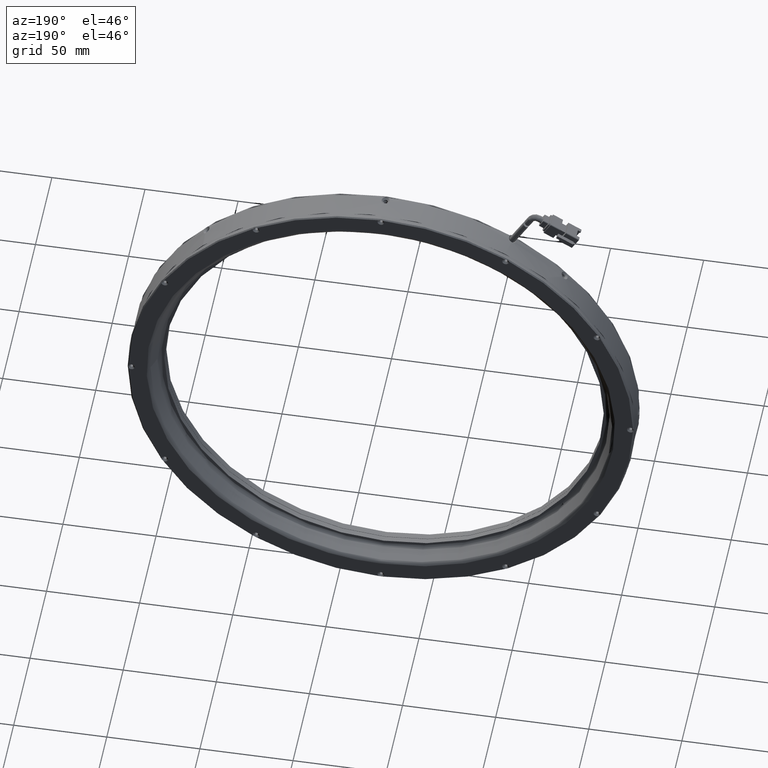
[diagram: clean part render]
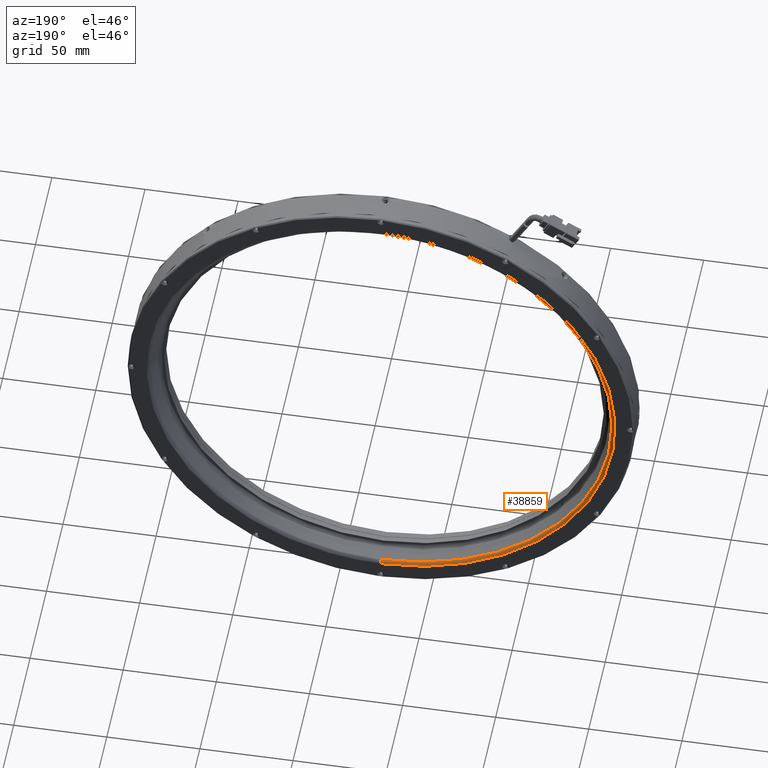
[diagram: same view with one face highlighted and labeled with its STEP entity id]
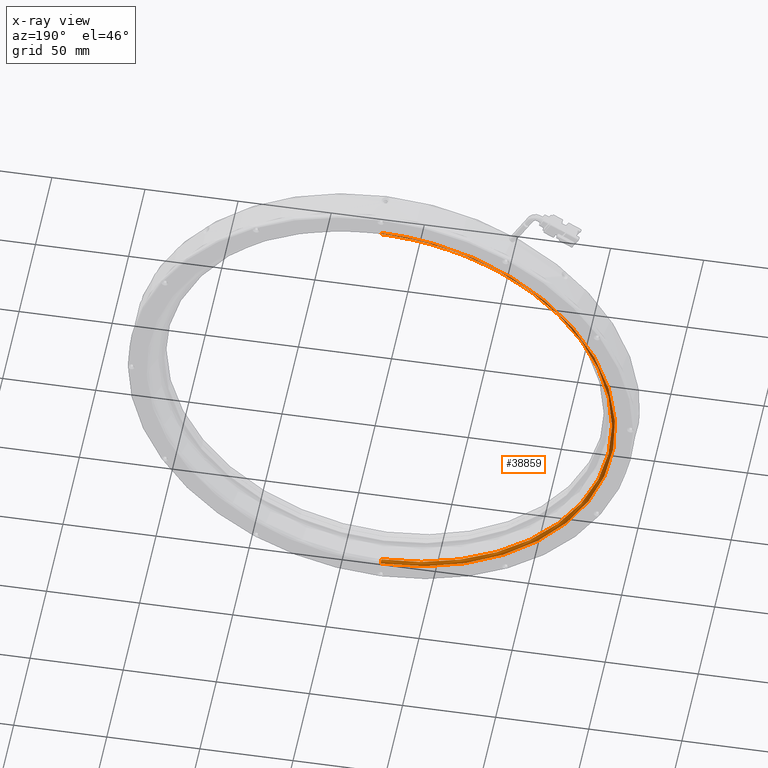
[diagram: x-ray of the same camera — body ghosted, the highlighted face saturated]
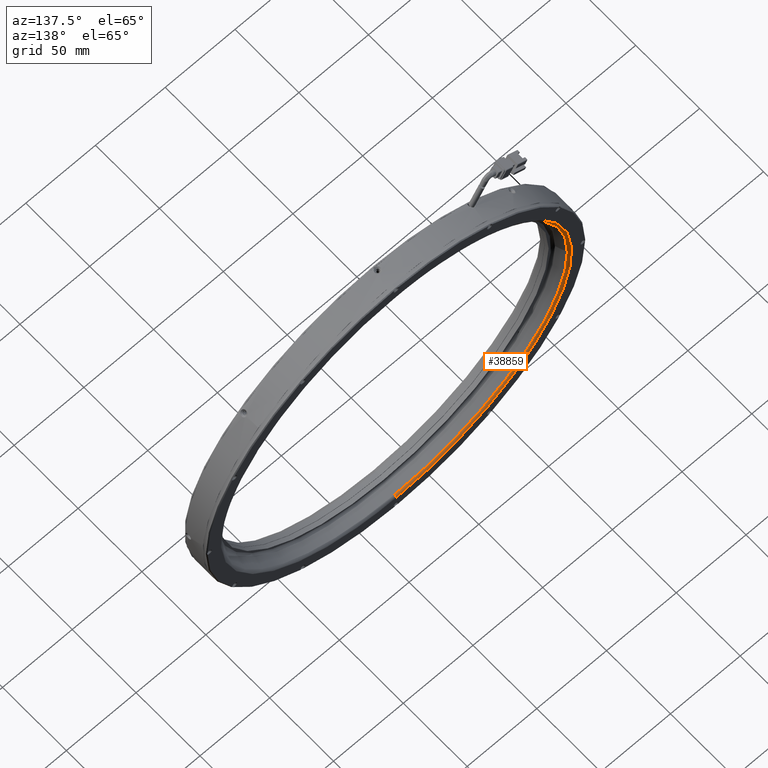
[diagram: same view with one face highlighted and labeled with its STEP entity id]
A machine part, auxiliary view. The second image highlights one B-rep face of the part: STEP entity #38859.
The next image is the same camera in x-ray: the body ghosted, the highlighted face saturated — about 0% of this face is hidden behind the body in this view.
A second angle (auxiliary view) of the same face is appended — the face is thin or edge-on in the first view.
In plain terms, the highlighted face is a freeform B-spline surface patch.
Its self-contained STEP definition (entity closure, byte-faithful):
#1815 = ORIENTED_EDGE ( 'NONE', *, *, #45398, .T. ) ;
#1917 = DIRECTION ( 'NONE',  ( 1.000000000000000000, 0.0000000000000000000, 0.0000000000000000000 ) ) ;
#3685 = CARTESIAN_POINT ( 'NONE',  ( -23.30300868215380200, 13.25624818171085700, 123.9268870712438700 ) ) ;
#3763 =( BOUNDED_CURVE ( )  B_SPLINE_CURVE ( 3, ( #86493, #3802, #96914, #34889 ),
 .UNSPECIFIED., .F., .F. ) 
 B_SPLINE_CURVE_WITH_KNOTS ( ( 4, 4 ),
 ( 0.0000000000000000000, 1.000000000000000000 ),
 .UNSPECIFIED. ) 
 CURVE ( )  GEOMETRIC_REPRESENTATION_ITEM ( )  RATIONAL_B_SPLINE_CURVE ( ( 1.000000000000000000, 0.3333333333333333700, 0.3333333333333333700, 1.000000000000000000 ) ) 
 REPRESENTATION_ITEM ( '' )  );
#3802 = CARTESIAN_POINT ( 'NONE',  ( -274.9155533077851600, 14.57220789505952600, -125.8062723128157400 ) ) ;
#4052 = AXIS2_PLACEMENT_3D ( 'NONE', #88054, #26028, #98469 ) ;
#7574 = VERTEX_POINT ( 'NONE', #13245 ) ;
#8029 = CARTESIAN_POINT ( 'NONE',  ( -23.30300868215380200, 14.57220789505952400, 125.8062723128156900 ) ) ;
#8453 = CARTESIAN_POINT ( 'NONE',  ( -271.1567828246415400, 13.25624818171085600, 123.9268870712439100 ) ) ;
#11302 = DIRECTION ( 'NONE',  ( -0.0000000000000000000, -1.000000000000000000, -0.0000000000000000000 ) ) ;
#12908 = FACE_OUTER_BOUND ( 'NONE', #57443, .T. ) ;
#13245 = CARTESIAN_POINT ( 'NONE',  ( -23.30300868215381600, 14.57220789505952000, -125.8062723128157400 ) ) ;
#18383 = CARTESIAN_POINT ( 'NONE',  ( -274.9155533077852200, 14.57220789505952200, -125.8062723128156900 ) ) ;
#18833 = CARTESIAN_POINT ( 'NONE',  ( -23.30300868215384500, 13.25624818171085700, -123.9268870712439100 ) ) ;
#26028 = DIRECTION ( 'NONE',  ( -0.0000000000000000000, -1.000000000000000000, -0.0000000000000000000 ) ) ;
#26893 = DIRECTION ( 'NONE',  ( -1.000000000000000000, 0.0000000000000000000, 1.224646799147353200E-016 ) ) ;
#28338 = VERTEX_POINT ( 'NONE', #3685 ) ;
#28745 = CARTESIAN_POINT ( 'NONE',  ( -23.30300868215380200, 14.57220789505951000, 124.9366584743893500 ) ) ;
#29076 = EDGE_CURVE ( 'NONE', #81361, #28338, #35276, .T. ) ;
#30220 = EDGE_CURVE ( 'NONE', #7574, #78249, #94158, .T. ) ;
#33431 = ORIENTED_EDGE ( 'NONE', *, *, #60943, .T. ) ;
#34889 = CARTESIAN_POINT ( 'NONE',  ( -23.30300868215379500, 14.57220789505952000, 125.8062723128156900 ) ) ;
#35276 = CIRCLE ( 'NONE', #35597, 2.000000000000029300 ) ;
#35597 = AXIS2_PLACEMENT_3D ( 'NONE', #88892, #26893, #99281 ) ;
#38859 = ADVANCED_FACE ( 'NONE', ( #12908 ), #108347, .T. ) ;
#39202 = CARTESIAN_POINT ( 'NONE',  ( -273.1763256309325200, 14.57220789505951200, -124.9366584743893200 ) ) ;
#45120 = EDGE_CURVE ( 'NONE', #7574, #81361, #3763, .T. ) ;
#45398 = EDGE_CURVE ( 'NONE', #28338, #52696, #81405, .T. ) ;
#49563 = CARTESIAN_POINT ( 'NONE',  ( -23.30300868215380200, 14.07341788861338100, 124.2243125209004400 ) ) ;
#52459 = AXIS2_PLACEMENT_3D ( 'NONE', #73324, #11302, #83705 ) ;
#52696 = VERTEX_POINT ( 'NONE', #73256 ) ;
#55837 = AXIS2_PLACEMENT_3D ( 'NONE', #63821, #1917, #74239 ) ;
#57443 = EDGE_LOOP ( 'NONE', ( #77018, #89361, #1815, #33431, #82126 ) ) ;
#60007 = CARTESIAN_POINT ( 'NONE',  ( -271.7516337239546800, 14.07341788861338100, -124.2243125209004300 ) ) ;
#60376 = CARTESIAN_POINT ( 'NONE',  ( -23.30300868215379500, 14.57220789505952000, 125.8062723128156900 ) ) ;
#60943 = EDGE_CURVE ( 'NONE', #52696, #78249, #99331, .T. ) ;
#63821 = CARTESIAN_POINT ( 'NONE',  ( -23.30300868215381600, 12.57220789505949000, -125.8062723128157600 ) ) ;
#70454 = CARTESIAN_POINT ( 'NONE',  ( -23.30300868215380200, 13.25624818171085700, 123.9268870712438700 ) ) ;
#73256 = CARTESIAN_POINT ( 'NONE',  ( -147.2298957533977000, 13.25624818171085700, -2.420481350073888600E-014 ) ) ;
#73324 = CARTESIAN_POINT ( 'NONE',  ( -23.30300868215381600, 13.25624818171085700, -2.420481350073888600E-014 ) ) ;
#74239 = DIRECTION ( 'NONE',  ( 0.0000000000000000000, 0.0000000000000000000, -1.000000000000000000 ) ) ;
#77018 = ORIENTED_EDGE ( 'NONE', *, *, #45120, .T. ) ;
#78249 = VERTEX_POINT ( 'NONE', #93363 ) ;
#79529 = CARTESIAN_POINT ( 'NONE',  ( -274.9155533077851600, 14.57220789505952200, 125.8062723128157200 ) ) ;
#80861 = CARTESIAN_POINT ( 'NONE',  ( -271.1567828246415400, 13.25624818171085600, -123.9268870712438700 ) ) ;
#81361 = VERTEX_POINT ( 'NONE', #60376 ) ;
#81405 = CIRCLE ( 'NONE', #4052, 123.9268870712439000 ) ;
#82126 = ORIENTED_EDGE ( 'NONE', *, *, #30220, .F. ) ;
#83705 = DIRECTION ( 'NONE',  ( 0.0000000000000000000, 0.0000000000000000000, -1.000000000000000000 ) ) ;
#86493 = CARTESIAN_POINT ( 'NONE',  ( -23.30300868215381600, 14.57220789505952000, -125.8062723128157400 ) ) ;
#88054 = CARTESIAN_POINT ( 'NONE',  ( -23.30300868215381600, 13.25624818171085700, -2.420481350073888600E-014 ) ) ;
#88892 = CARTESIAN_POINT ( 'NONE',  ( -23.30300868215380200, 12.57220789505949000, 125.8062723128157100 ) ) ;
#89361 = ORIENTED_EDGE ( 'NONE', *, *, #29076, .T. ) ;
#90787 = CARTESIAN_POINT ( 'NONE',  ( -23.30300868215384500, 14.57220789505952400, -125.8062723128157400 ) ) ;
#93363 = CARTESIAN_POINT ( 'NONE',  ( -23.30300868215381600, 13.25624818171085700, -123.9268870712439300 ) ) ;
#94158 = CIRCLE ( 'NONE', #55837, 2.000000000000029300 ) ;
#96914 = CARTESIAN_POINT ( 'NONE',  ( -274.9155533077851600, 14.57220789505952600, 125.8062723128157200 ) ) ;
#98469 = DIRECTION ( 'NONE',  ( 0.0000000000000000000, 0.0000000000000000000, -1.000000000000000000 ) ) ;
#99281 = DIRECTION ( 'NONE',  ( 0.0000000000000000000, 0.0000000000000000000, 1.000000000000000000 ) ) ;
#99331 = CIRCLE ( 'NONE', #52459, 123.9268870712439000 ) ;
#101213 = CARTESIAN_POINT ( 'NONE',  ( -273.1763256309325200, 14.57220789505951200, 124.9366584743893800 ) ) ;
#108347 =( BOUNDED_SURFACE ( )  B_SPLINE_SURFACE ( 3, 3, ( 
 ( #8029, #79529, #18383, #90787 ),
 ( #28745, #101213, #39202, #111656 ),
 ( #49563, #122074, #60007, #132477 ),
 ( #70454, #8453, #80861, #18833 ) ),
 .UNSPECIFIED., .F., .F., .F. ) 
 B_SPLINE_SURFACE_WITH_KNOTS ( ( 4, 4 ),
 ( 4, 4 ),
 ( 0.0000000000000000000, 1.000000000000000000 ),
 ( 0.0000000000000000000, 1.000000000000000000 ),
 .UNSPECIFIED. ) 
 GEOMETRIC_REPRESENTATION_ITEM ( )  RATIONAL_B_SPLINE_SURFACE ( (
 ( 1.000000000000000000, 0.3333333333333334300, 0.3333333333333334300, 1.000000000000000000),
 ( 0.8794346961926655700, 0.2931448987308886100, 0.2931448987308886100, 0.8794346961926655700),
 ( 0.8794346961926655700, 0.2931448987308886100, 0.2931448987308886100, 0.8794346961926655700),
 ( 1.000000000000000000, 0.3333333333333334300, 0.3333333333333334300, 1.000000000000000000) ) ) 
 REPRESENTATION_ITEM ( '' )  SURFACE ( )  );
#111656 = CARTESIAN_POINT ( 'NONE',  ( -23.30300868215384500, 14.57220789505951000, -124.9366584743893800 ) ) ;
#122074 = CARTESIAN_POINT ( 'NONE',  ( -271.7516337239546800, 14.07341788861338100, 124.2243125209004500 ) ) ;
#132477 = CARTESIAN_POINT ( 'NONE',  ( -23.30300868215384500, 14.07341788861338100, -124.2243125209004800 ) ) ;